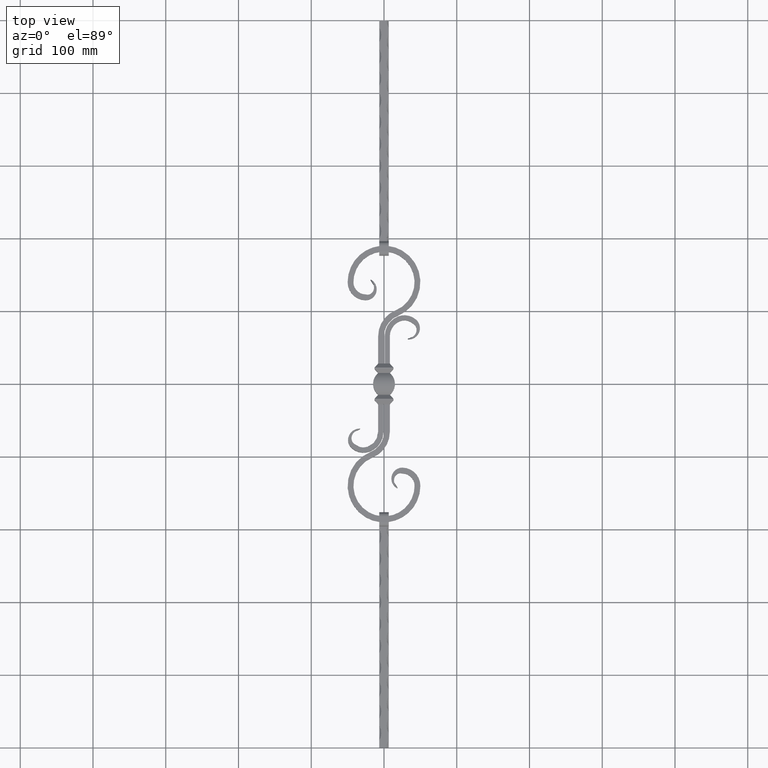
[diagram: clean part render]
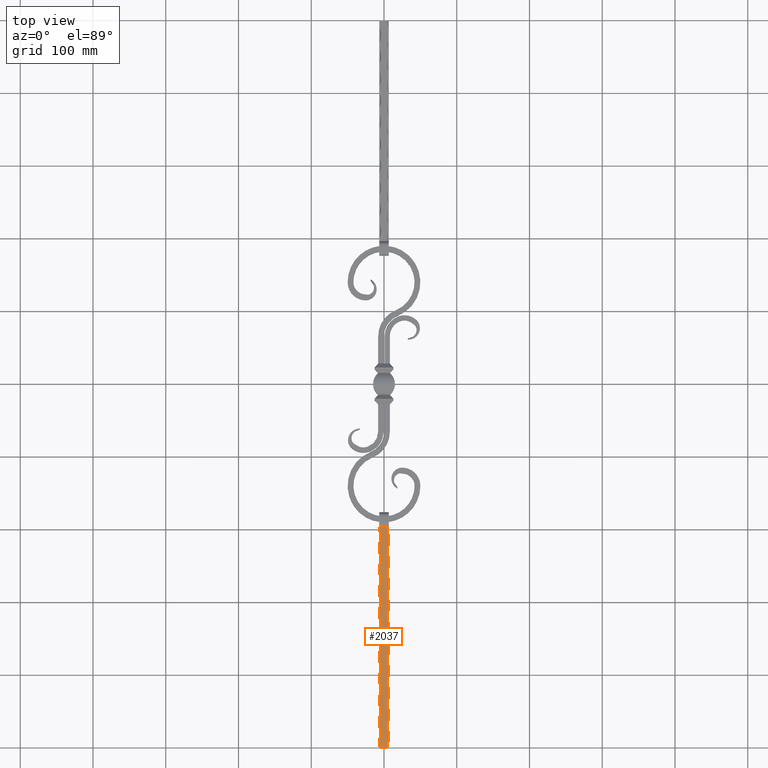
[diagram: same view with one face highlighted and labeled with its STEP entity id]
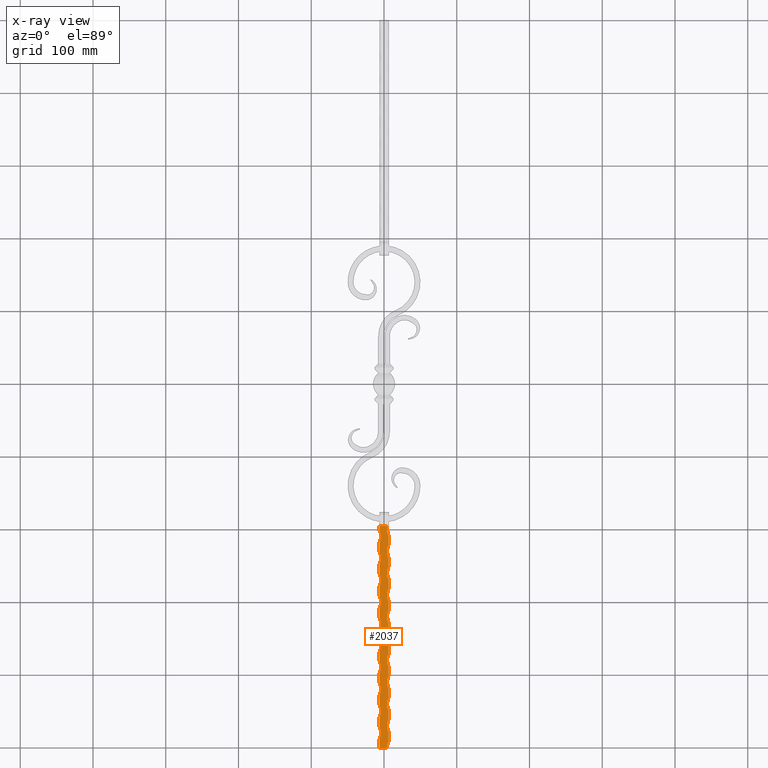
[diagram: x-ray of the same camera — body ghosted, the highlighted face saturated]
A machine part, top view. The second image highlights one B-rep face of the part: STEP entity #2037.
The next image is the same camera in x-ray: the body ghosted, the highlighted face saturated — about 0% of this face is hidden behind the body in this view.
In plain terms, the highlighted planar face has unit normal (-0, 0, -1).
Its self-contained STEP definition (entity closure, byte-faithful):
#44 = CARTESIAN_POINT ( 'NONE',  ( -6.499999999999999112, -380.0000000000000000, 6.500000000000000888 ) ) ;
#49 = VERTEX_POINT ( 'NONE', #18248 ) ;
#67 = LINE ( 'NONE', #6631, #11092 ) ;
#108 = ORIENTED_EDGE ( 'NONE', *, *, #2004, .F. ) ;
#117 = CARTESIAN_POINT ( 'NONE',  ( -6.499999999999999112, -500.0000000000000000, 6.500000000000000888 ) ) ;
#171 = CARTESIAN_POINT ( 'NONE',  ( 6.500000000000000888, -219.9999999999999716, 6.500000000000000888 ) ) ;
#199 = ORIENTED_EDGE ( 'NONE', *, *, #9849, .F. ) ;
#234 = VERTEX_POINT ( 'NONE', #6979 ) ;
#311 = EDGE_CURVE ( 'NONE', #9014, #1163, #14910, .T. ) ;
#418 = ORIENTED_EDGE ( 'NONE', *, *, #11636, .F. ) ;
#466 = CARTESIAN_POINT ( 'NONE',  ( -25.25000000000003553, -390.0000000000000000, 6.500000000000000888 ) ) ;
#713 = CIRCLE ( 'NONE', #12498, 21.25000000000003197 ) ;
#729 = EDGE_CURVE ( 'NONE', #3152, #10022, #17336, .T. ) ;
#760 = DIRECTION ( 'NONE',  ( -0.000000000000000000, -0.000000000000000000, 1.000000000000000000 ) ) ;
#802 = EDGE_CURVE ( 'NONE', #11453, #2189, #16228, .T. ) ;
#821 = DIRECTION ( 'NONE',  ( -0.000000000000000000, -0.000000000000000000, 1.000000000000000000 ) ) ;
#859 = VECTOR ( 'NONE', #11815, 1000.000000000000000 ) ;
#863 = CARTESIAN_POINT ( 'NONE',  ( -6.499999999999999112, -500.0000000000000000, 6.500000000000000888 ) ) ;
#1005 = EDGE_CURVE ( 'NONE', #234, #14254, #11531, .T. ) ;
#1046 = LINE ( 'NONE', #14495, #2365 ) ;
#1069 = AXIS2_PLACEMENT_3D ( 'NONE', #17343, #6003, #11558 ) ;
#1075 = CARTESIAN_POINT ( 'NONE',  ( -25.25000000000003553, -209.9999999999999716, 6.500000000000000888 ) ) ;
#1091 = EDGE_CURVE ( 'NONE', #8432, #17689, #11980, .T. ) ;
#1093 = VERTEX_POINT ( 'NONE', #14836 ) ;
#1106 = CIRCLE ( 'NONE', #8530, 21.25000000000003197 ) ;
#1138 = LINE ( 'NONE', #15824, #4433 ) ;
#1163 = VERTEX_POINT ( 'NONE', #3331 ) ;
#1203 = CIRCLE ( 'NONE', #12056, 21.25000000000003197 ) ;
#1230 = CARTESIAN_POINT ( 'NONE',  ( -6.499999999999999112, -280.0000000000000000, 6.500000000000000888 ) ) ;
#1265 = DIRECTION ( 'NONE',  ( -1.000000000000000000, 0.000000000000000000, 0.000000000000000000 ) ) ;
#1297 = AXIS2_PLACEMENT_3D ( 'NONE', #15415, #5313, #1265 ) ;
#1318 = CARTESIAN_POINT ( 'NONE',  ( 6.500000000000000888, -279.9999999999999432, 6.500000000000000888 ) ) ;
#1435 = CARTESIAN_POINT ( 'NONE',  ( 6.500000000000000888, -339.9999999999999432, 6.500000000000000888 ) ) ;
#1456 = DIRECTION ( 'NONE',  ( -0.000000000000000000, 1.000000000000000000, -0.000000000000000000 ) ) ;
#1717 = CARTESIAN_POINT ( 'NONE',  ( -6.499999999999999112, -500.0000000000000000, 6.500000000000000888 ) ) ;
#1723 = CARTESIAN_POINT ( 'NONE',  ( 25.25000000000002132, -500.0000000000000000, 6.500000000000018652 ) ) ;
#1737 = CARTESIAN_POINT ( 'NONE',  ( 6.500000000000000888, -459.9999999999999432, 6.500000000000000888 ) ) ;
#1794 = CARTESIAN_POINT ( 'NONE',  ( -6.499999999999999112, -459.9999999999999432, 6.500000000000000888 ) ) ;
#1909 = CARTESIAN_POINT ( 'NONE',  ( 25.25000000000002842, -410.0000000000000000, 6.500000000000000888 ) ) ;
#1965 = CARTESIAN_POINT ( 'NONE',  ( 6.500000000000000888, -500.0000000000000000, 6.500000000000000888 ) ) ;
#2004 = EDGE_CURVE ( 'NONE', #1163, #6550, #713, .T. ) ;
#2037 = ADVANCED_FACE ( 'NONE', ( #7765 ), #12389, .F. ) ;
#2052 = EDGE_CURVE ( 'NONE', #234, #10519, #8851, .T. ) ;
#2167 = CARTESIAN_POINT ( 'NONE',  ( -25.25000000000003553, -300.0000000000000000, 6.500000000000000888 ) ) ;
#2189 = VERTEX_POINT ( 'NONE', #1794 ) ;
#2228 = DIRECTION ( 'NONE',  ( -1.000000000000000000, 0.000000000000000000, 0.000000000000000000 ) ) ;
#2237 = ORIENTED_EDGE ( 'NONE', *, *, #2245, .F. ) ;
#2245 = EDGE_CURVE ( 'NONE', #3994, #16350, #11726, .T. ) ;
#2298 = VERTEX_POINT ( 'NONE', #1230 ) ;
#2301 = CARTESIAN_POINT ( 'NONE',  ( -25.25000000000003553, -449.9999999999999432, 6.500000000000000888 ) ) ;
#2335 = CIRCLE ( 'NONE', #10131, 21.25000000000003197 ) ;
#2365 = VECTOR ( 'NONE', #11722, 1000.000000000000000 ) ;
#2454 = EDGE_CURVE ( 'NONE', #11581, #2298, #15756, .T. ) ;
#2463 = CARTESIAN_POINT ( 'NONE',  ( -6.499999999999999112, -500.0000000000000000, 6.500000000000000888 ) ) ;
#2469 = CARTESIAN_POINT ( 'NONE',  ( 6.500000000000000888, -500.0000000000000000, 6.500000000000000888 ) ) ;
#2483 = EDGE_CURVE ( 'NONE', #17567, #14969, #1138, .T. ) ;
#2692 = ORIENTED_EDGE ( 'NONE', *, *, #5502, .T. ) ;
#2814 = DIRECTION ( 'NONE',  ( -0.000000000000000000, -0.000000000000000000, 1.000000000000000000 ) ) ;
#2856 = VERTEX_POINT ( 'NONE', #16791 ) ;
#2883 = CIRCLE ( 'NONE', #12993, 21.25000000000003197 ) ;
#2935 = AXIS2_PLACEMENT_3D ( 'NONE', #11520, #17601, #17478 ) ;
#2981 = EDGE_CURVE ( 'NONE', #10022, #5537, #2883, .T. ) ;
#3027 = DIRECTION ( 'NONE',  ( -0.000000000000000000, -0.000000000000000000, 1.000000000000000000 ) ) ;
#3121 = CARTESIAN_POINT ( 'NONE',  ( 6.500000000000000888, -300.0000000000000000, 6.500000000000000888 ) ) ;
#3152 = VERTEX_POINT ( 'NONE', #4709 ) ;
#3160 = VECTOR ( 'NONE', #5930, 1000.000000000000000 ) ;
#3245 = DIRECTION ( 'NONE',  ( -0.000000000000000000, 1.000000000000000000, -0.000000000000000000 ) ) ;
#3258 = DIRECTION ( 'NONE',  ( -0.000000000000000000, 1.000000000000000000, -0.000000000000000000 ) ) ;
#3278 = LINE ( 'NONE', #15966, #17429 ) ;
#3322 = VECTOR ( 'NONE', #1456, 1000.000000000000000 ) ;
#3331 = CARTESIAN_POINT ( 'NONE',  ( -6.499999999999999112, -250.0000000000000000, 6.500000000000000888 ) ) ;
#3333 = EDGE_CURVE ( 'NONE', #49, #11453, #12131, .T. ) ;
#3448 = EDGE_CURVE ( 'NONE', #16931, #8896, #10805, .T. ) ;
#3452 = VERTEX_POINT ( 'NONE', #7027 ) ;
#3481 = CARTESIAN_POINT ( 'NONE',  ( -6.499999999999999112, -500.0000000000000000, 6.500000000000000888 ) ) ;
#3489 = DIRECTION ( 'NONE',  ( -0.000000000000000000, -0.000000000000000000, 1.000000000000000000 ) ) ;
#3518 = CIRCLE ( 'NONE', #11651, 21.25000000000003197 ) ;
#3608 = CIRCLE ( 'NONE', #4277, 21.25000000000003197 ) ;
#3616 = VECTOR ( 'NONE', #4423, 1000.000000000000000 ) ;
#3697 = DIRECTION ( 'NONE',  ( -0.000000000000000000, -0.000000000000000000, 1.000000000000000000 ) ) ;
#3707 = DIRECTION ( 'NONE',  ( -1.000000000000000000, 0.000000000000000000, 0.000000000000000000 ) ) ;
#3741 = CARTESIAN_POINT ( 'NONE',  ( 6.500000000000000888, -240.0000000000000000, 6.500000000000000888 ) ) ;
#3766 = ORIENTED_EDGE ( 'NONE', *, *, #10804, .F. ) ;
#3840 = DIRECTION ( 'NONE',  ( -1.000000000000000000, 0.000000000000000000, 0.000000000000000000 ) ) ;
#3859 = CARTESIAN_POINT ( 'NONE',  ( -25.25000000000003553, -329.9999999999999432, 6.500000000000000888 ) ) ;
#3876 = DIRECTION ( 'NONE',  ( -0.000000000000000000, -0.000000000000000000, 1.000000000000000000 ) ) ;
#3937 = DIRECTION ( 'NONE',  ( -0.000000000000000000, 0.000000000000000000, -1.000000000000000000 ) ) ;
#3975 = AXIS2_PLACEMENT_3D ( 'NONE', #15091, #3876, #10852 ) ;
#3994 = VERTEX_POINT ( 'NONE', #10263 ) ;
#4027 = EDGE_CURVE ( 'NONE', #4401, #4323, #12575, .T. ) ;
#4111 = ORIENTED_EDGE ( 'NONE', *, *, #16289, .F. ) ;
#4171 = CARTESIAN_POINT ( 'NONE',  ( -6.499999999999999112, -500.0000000000000000, 6.500000000000000888 ) ) ;
#4230 = DIRECTION ( 'NONE',  ( -1.000000000000000000, 0.000000000000000000, 0.000000000000000000 ) ) ;
#4241 = ORIENTED_EDGE ( 'NONE', *, *, #9174, .F. ) ;
#4261 = VECTOR ( 'NONE', #15504, 1000.000000000000000 ) ;
#4277 = AXIS2_PLACEMENT_3D ( 'NONE', #2301, #12154, #3707 ) ;
#4323 = VERTEX_POINT ( 'NONE', #5503 ) ;
#4401 = VERTEX_POINT ( 'NONE', #8272 ) ;
#4411 = DIRECTION ( 'NONE',  ( -0.000000000000000000, 1.000000000000000000, -0.000000000000000000 ) ) ;
#4423 = DIRECTION ( 'NONE',  ( -0.000000000000000000, 1.000000000000000000, -0.000000000000000000 ) ) ;
#4433 = VECTOR ( 'NONE', #3245, 1000.000000000000000 ) ;
#4451 = CARTESIAN_POINT ( 'NONE',  ( -25.25000000000003553, -420.0000000000000000, 6.500000000000000888 ) ) ;
#4493 = VERTEX_POINT ( 'NONE', #17261 ) ;
#4570 = LINE ( 'NONE', #14580, #17647 ) ;
#4639 = AXIS2_PLACEMENT_3D ( 'NONE', #17801, #3489, #17572 ) ;
#4643 = CARTESIAN_POINT ( 'NONE',  ( -6.499999999999999112, -430.0000000000000000, 6.500000000000000888 ) ) ;
#4662 = EDGE_CURVE ( 'NONE', #4493, #13727, #17434, .T. ) ;
#4709 = CARTESIAN_POINT ( 'NONE',  ( -6.499999999999999112, -410.0000000000000000, 6.500000000000000888 ) ) ;
#4768 = DIRECTION ( 'NONE',  ( -0.000000000000000000, -0.000000000000000000, 1.000000000000000000 ) ) ;
#4776 = VERTEX_POINT ( 'NONE', #9727 ) ;
#4839 = AXIS2_PLACEMENT_3D ( 'NONE', #14378, #15621, #10122 ) ;
#4920 = CIRCLE ( 'NONE', #14294, 21.25000000000003197 ) ;
#4987 = ORIENTED_EDGE ( 'NONE', *, *, #11160, .T. ) ;
#5054 = DIRECTION ( 'NONE',  ( 1.000000000000000000, 0.000000000000000000, 0.000000000000000000 ) ) ;
#5058 = DIRECTION ( 'NONE',  ( -0.000000000000000000, 1.000000000000000000, -0.000000000000000000 ) ) ;
#5168 = AXIS2_PLACEMENT_3D ( 'NONE', #2463, #3937, #5227 ) ;
#5227 = DIRECTION ( 'NONE',  ( -1.000000000000000000, -0.000000000000000000, 0.000000000000000000 ) ) ;
#5273 = AXIS2_PLACEMENT_3D ( 'NONE', #8747, #3027, #12909 ) ;
#5313 = DIRECTION ( 'NONE',  ( -0.000000000000000000, -0.000000000000000000, 1.000000000000000000 ) ) ;
#5361 = DIRECTION ( 'NONE',  ( -1.000000000000000000, 0.000000000000000000, 0.000000000000000000 ) ) ;
#5398 = DIRECTION ( 'NONE',  ( -0.000000000000000000, -0.000000000000000000, 1.000000000000000000 ) ) ;
#5502 = EDGE_CURVE ( 'NONE', #5516, #10519, #4570, .T. ) ;
#5503 = CARTESIAN_POINT ( 'NONE',  ( 6.500000000000000888, -420.0000000000000000, 6.500000000000000888 ) ) ;
#5516 = VERTEX_POINT ( 'NONE', #13137 ) ;
#5530 = DIRECTION ( 'NONE',  ( 1.000000000000000000, 0.000000000000000000, 0.000000000000000000 ) ) ;
#5537 = VERTEX_POINT ( 'NONE', #44 ) ;
#5621 = EDGE_CURVE ( 'NONE', #5537, #1093, #12288, .T. ) ;
#5628 = LINE ( 'NONE', #2469, #6058 ) ;
#5685 = LINE ( 'NONE', #15117, #16741 ) ;
#5738 = DIRECTION ( 'NONE',  ( -1.000000000000000000, 0.000000000000000000, 0.000000000000000000 ) ) ;
#5902 = CARTESIAN_POINT ( 'NONE',  ( 6.500000000000000888, -449.9999999999999432, 6.500000000000000888 ) ) ;
#5930 = DIRECTION ( 'NONE',  ( -0.000000000000000000, 1.000000000000000000, -0.000000000000000000 ) ) ;
#5987 = EDGE_CURVE ( 'NONE', #13130, #11223, #10977, .T. ) ;
#6003 = DIRECTION ( 'NONE',  ( -0.000000000000000000, -0.000000000000000000, 1.000000000000000000 ) ) ;
#6023 = ORIENTED_EDGE ( 'NONE', *, *, #2052, .F. ) ;
#6058 = VECTOR ( 'NONE', #10859, 1000.000000000000000 ) ;
#6144 = CIRCLE ( 'NONE', #9402, 21.25000000000003197 ) ;
#6179 = ORIENTED_EDGE ( 'NONE', *, *, #12468, .T. ) ;
#6195 = DIRECTION ( 'NONE',  ( -0.000000000000000000, 1.000000000000000000, -0.000000000000000000 ) ) ;
#6318 = CARTESIAN_POINT ( 'NONE',  ( -6.499999999999999112, -500.0000000000000000, 6.500000000000000888 ) ) ;
#6481 = DIRECTION ( 'NONE',  ( -0.000000000000000000, 1.000000000000000000, -0.000000000000000000 ) ) ;
#6499 = CARTESIAN_POINT ( 'NONE',  ( -6.499999999999999112, -219.9999999999999716, 6.500000000000000888 ) ) ;
#6550 = VERTEX_POINT ( 'NONE', #9619 ) ;
#6579 = VERTEX_POINT ( 'NONE', #1318 ) ;
#6583 = CARTESIAN_POINT ( 'NONE',  ( -6.499999999999999112, -470.0000000000000000, 6.500000000000000888 ) ) ;
#6631 = CARTESIAN_POINT ( 'NONE',  ( -6.499999999999999112, -196.0000000000000000, 6.500000000000000888 ) ) ;
#6633 = VECTOR ( 'NONE', #4411, 1000.000000000000000 ) ;
#6645 = DIRECTION ( 'NONE',  ( -0.000000000000000000, -0.000000000000000000, 1.000000000000000000 ) ) ;
#6663 = ORIENTED_EDGE ( 'NONE', *, *, #14690, .F. ) ;
#6708 = LINE ( 'NONE', #3481, #17578 ) ;
#6750 = VECTOR ( 'NONE', #16132, 1000.000000000000000 ) ;
#6801 = CARTESIAN_POINT ( 'NONE',  ( 25.25000000000002842, -199.9999999999999432, 6.500000000000000888 ) ) ;
#6935 = CIRCLE ( 'NONE', #11848, 21.25000000000003197 ) ;
#6979 = CARTESIAN_POINT ( 'NONE',  ( 6.500000000000000888, -370.0000000000000000, 6.500000000000000888 ) ) ;
#6992 = ORIENTED_EDGE ( 'NONE', *, *, #2981, .F. ) ;
#7027 = CARTESIAN_POINT ( 'NONE',  ( -6.499999999999999112, -310.0000000000000000, 6.500000000000000888 ) ) ;
#7277 = DIRECTION ( 'NONE',  ( -0.000000000000000000, -0.000000000000000000, 1.000000000000000000 ) ) ;
#7359 = VERTEX_POINT ( 'NONE', #9041 ) ;
#7364 = DIRECTION ( 'NONE',  ( -1.000000000000000000, 0.000000000000000000, 0.000000000000000000 ) ) ;
#7371 = CIRCLE ( 'NONE', #14918, 21.25000000000003197 ) ;
#7413 = ORIENTED_EDGE ( 'NONE', *, *, #10278, .T. ) ;
#7495 = DIRECTION ( 'NONE',  ( -0.000000000000000000, 1.000000000000000000, -0.000000000000000000 ) ) ;
#7660 = DIRECTION ( 'NONE',  ( -0.000000000000000000, 1.000000000000000000, -0.000000000000000000 ) ) ;
#7670 = CARTESIAN_POINT ( 'NONE',  ( -6.499999999999999112, -260.0000000000000000, 6.500000000000000888 ) ) ;
#7736 = ORIENTED_EDGE ( 'NONE', *, *, #17703, .F. ) ;
#7763 = EDGE_CURVE ( 'NONE', #13130, #9885, #12835, .T. ) ;
#7765 = FACE_OUTER_BOUND ( 'NONE', #14423, .T. ) ;
#7871 = ORIENTED_EDGE ( 'NONE', *, *, #7763, .T. ) ;
#8096 = DIRECTION ( 'NONE',  ( -0.000000000000000000, 1.000000000000000000, -0.000000000000000000 ) ) ;
#8147 = CARTESIAN_POINT ( 'NONE',  ( -6.499999999999999112, -319.9999999999999432, 6.500000000000000888 ) ) ;
#8159 = ORIENTED_EDGE ( 'NONE', *, *, #9607, .F. ) ;
#8170 = ORIENTED_EDGE ( 'NONE', *, *, #17301, .F. ) ;
#8267 = VECTOR ( 'NONE', #5058, 1000.000000000000000 ) ;
#8272 = CARTESIAN_POINT ( 'NONE',  ( 6.500000000000000888, -429.9999999999999432, 6.500000000000000888 ) ) ;
#8396 = ORIENTED_EDGE ( 'NONE', *, *, #13444, .F. ) ;
#8432 = VERTEX_POINT ( 'NONE', #1435 ) ;
#8486 = AXIS2_PLACEMENT_3D ( 'NONE', #16756, #6645, #5361 ) ;
#8530 = AXIS2_PLACEMENT_3D ( 'NONE', #9197, #760, #14926 ) ;
#8747 = CARTESIAN_POINT ( 'NONE',  ( -25.25000000000003553, -270.0000000000000000, 6.500000000000000888 ) ) ;
#8851 = CIRCLE ( 'NONE', #3975, 21.25000000000003197 ) ;
#8857 = ORIENTED_EDGE ( 'NONE', *, *, #311, .F. ) ;
#8886 = ORIENTED_EDGE ( 'NONE', *, *, #5621, .F. ) ;
#8896 = VERTEX_POINT ( 'NONE', #15433 ) ;
#8898 = DIRECTION ( 'NONE',  ( -1.000000000000000000, 0.000000000000000000, 0.000000000000000000 ) ) ;
#8925 = CIRCLE ( 'NONE', #8486, 21.25000000000003197 ) ;
#9014 = VERTEX_POINT ( 'NONE', #7670 ) ;
#9041 = CARTESIAN_POINT ( 'NONE',  ( 6.500000000000000888, -209.9999999999999716, 6.500000000000000888 ) ) ;
#9071 = EDGE_CURVE ( 'NONE', #6579, #14969, #15047, .T. ) ;
#9134 = ORIENTED_EDGE ( 'NONE', *, *, #10348, .F. ) ;
#9174 = EDGE_CURVE ( 'NONE', #17567, #17689, #1106, .T. ) ;
#9176 = DIRECTION ( 'NONE',  ( -1.000000000000000000, 0.000000000000000000, 0.000000000000000000 ) ) ;
#9197 = CARTESIAN_POINT ( 'NONE',  ( 25.25000000000002842, -319.9999999999999432, 6.500000000000000888 ) ) ;
#9402 = AXIS2_PLACEMENT_3D ( 'NONE', #2167, #12256, #9176 ) ;
#9440 = VERTEX_POINT ( 'NONE', #10168 ) ;
#9607 = EDGE_CURVE ( 'NONE', #3452, #11581, #6144, .T. ) ;
#9619 = CARTESIAN_POINT ( 'NONE',  ( -6.499999999999999112, -229.9999999999999716, 6.500000000000000888 ) ) ;
#9727 = CARTESIAN_POINT ( 'NONE',  ( 6.500000000000000888, -249.9999999999999716, 6.500000000000000888 ) ) ;
#9774 = VERTEX_POINT ( 'NONE', #171 ) ;
#9832 = ORIENTED_EDGE ( 'NONE', *, *, #9071, .F. ) ;
#9846 = DIRECTION ( 'NONE',  ( -0.000000000000000000, 1.000000000000000000, -0.000000000000000000 ) ) ;
#9849 = EDGE_CURVE ( 'NONE', #5516, #4323, #3518, .T. ) ;
#9885 = VERTEX_POINT ( 'NONE', #5902 ) ;
#10022 = VERTEX_POINT ( 'NONE', #16188 ) ;
#10122 = DIRECTION ( 'NONE',  ( -1.000000000000000000, 0.000000000000000000, 0.000000000000000000 ) ) ;
#10131 = AXIS2_PLACEMENT_3D ( 'NONE', #3859, #5398, #16727 ) ;
#10168 = CARTESIAN_POINT ( 'NONE',  ( -6.499999999999999112, -350.0000000000000000, 6.500000000000000888 ) ) ;
#10195 = DIRECTION ( 'NONE',  ( -0.000000000000000000, -0.000000000000000000, 1.000000000000000000 ) ) ;
#10263 = CARTESIAN_POINT ( 'NONE',  ( -6.499999999999999112, -439.9999999999999432, 6.500000000000000888 ) ) ;
#10278 = EDGE_CURVE ( 'NONE', #18182, #11223, #3278, .T. ) ;
#10348 = EDGE_CURVE ( 'NONE', #2298, #9014, #13882, .T. ) ;
#10487 = VERTEX_POINT ( 'NONE', #12874 ) ;
#10519 = VERTEX_POINT ( 'NONE', #11446 ) ;
#10719 = EDGE_CURVE ( 'NONE', #17033, #16931, #14788, .T. ) ;
#10740 = VERTEX_POINT ( 'NONE', #8147 ) ;
#10744 = ORIENTED_EDGE ( 'NONE', *, *, #12340, .F. ) ;
#10804 = EDGE_CURVE ( 'NONE', #10740, #3452, #5685, .T. ) ;
#10805 = LINE ( 'NONE', #11417, #3322 ) ;
#10816 = ORIENTED_EDGE ( 'NONE', *, *, #4027, .T. ) ;
#10852 = DIRECTION ( 'NONE',  ( -1.000000000000000000, 0.000000000000000000, 0.000000000000000000 ) ) ;
#10859 = DIRECTION ( 'NONE',  ( -0.000000000000000000, 1.000000000000000000, -0.000000000000000000 ) ) ;
#10877 = LINE ( 'NONE', #17584, #15324 ) ;
#10883 = CARTESIAN_POINT ( 'NONE',  ( 6.499999999999992895, -490.0000000000000000, 6.500000000000018652 ) ) ;
#10977 = CIRCLE ( 'NONE', #4839, 21.25000000000003197 ) ;
#11092 = VECTOR ( 'NONE', #5530, 1000.000000000000000 ) ;
#11132 = ORIENTED_EDGE ( 'NONE', *, *, #10719, .F. ) ;
#11160 = EDGE_CURVE ( 'NONE', #9774, #7359, #1046, .T. ) ;
#11223 = VERTEX_POINT ( 'NONE', #14736 ) ;
#11404 = CARTESIAN_POINT ( 'NONE',  ( -6.499999999999999112, -290.0000000000000000, 6.500000000000000888 ) ) ;
#11417 = CARTESIAN_POINT ( 'NONE',  ( -6.499999999999999112, -500.0000000000000000, 6.500000000000000888 ) ) ;
#11443 = ORIENTED_EDGE ( 'NONE', *, *, #802, .F. ) ;
#11446 = CARTESIAN_POINT ( 'NONE',  ( 6.500000000000000888, -390.0000000000000000, 6.500000000000000888 ) ) ;
#11453 = VERTEX_POINT ( 'NONE', #6583 ) ;
#11455 = ORIENTED_EDGE ( 'NONE', *, *, #729, .F. ) ;
#11520 = CARTESIAN_POINT ( 'NONE',  ( 25.25000000000002842, -350.0000000000000000, 6.500000000000000888 ) ) ;
#11531 = LINE ( 'NONE', #17137, #3160 ) ;
#11558 = DIRECTION ( 'NONE',  ( -1.000000000000000000, 0.000000000000000000, 0.000000000000000000 ) ) ;
#11566 = CIRCLE ( 'NONE', #17639, 21.25000000000003197 ) ;
#11581 = VERTEX_POINT ( 'NONE', #11404 ) ;
#11636 = EDGE_CURVE ( 'NONE', #8432, #14254, #15418, .T. ) ;
#11651 = AXIS2_PLACEMENT_3D ( 'NONE', #1909, #15831, #7364 ) ;
#11722 = DIRECTION ( 'NONE',  ( -0.000000000000000000, 1.000000000000000000, -0.000000000000000000 ) ) ;
#11726 = LINE ( 'NONE', #14713, #16193 ) ;
#11815 = DIRECTION ( 'NONE',  ( -0.000000000000000000, 1.000000000000000000, -0.000000000000000000 ) ) ;
#11845 = VERTEX_POINT ( 'NONE', #3741 ) ;
#11848 = AXIS2_PLACEMENT_3D ( 'NONE', #15936, #10195, #8898 ) ;
#11908 = EDGE_CURVE ( 'NONE', #10487, #10740, #2335, .T. ) ;
#11948 = CARTESIAN_POINT ( 'NONE',  ( 6.500000000000000888, -500.0000000000000000, 6.500000000000000888 ) ) ;
#11957 = CARTESIAN_POINT ( 'NONE',  ( 6.500000000000000888, -309.9999999999999432, 6.500000000000000888 ) ) ;
#11980 = LINE ( 'NONE', #11948, #14892 ) ;
#12005 = ORIENTED_EDGE ( 'NONE', *, *, #11908, .F. ) ;
#12015 = ORIENTED_EDGE ( 'NONE', *, *, #1091, .T. ) ;
#12016 = CARTESIAN_POINT ( 'NONE',  ( 4.379865836559640790, -196.0000000000000000, 6.500000000000000888 ) ) ;
#12056 = AXIS2_PLACEMENT_3D ( 'NONE', #6801, #15144, #13827 ) ;
#12069 = ORIENTED_EDGE ( 'NONE', *, *, #5987, .F. ) ;
#12131 = CIRCLE ( 'NONE', #1297, 21.25000000000003197 ) ;
#12154 = DIRECTION ( 'NONE',  ( -0.000000000000000000, -0.000000000000000000, 1.000000000000000000 ) ) ;
#12227 = EDGE_CURVE ( 'NONE', #6550, #17033, #16723, .T. ) ;
#12256 = DIRECTION ( 'NONE',  ( -0.000000000000000000, -0.000000000000000000, 1.000000000000000000 ) ) ;
#12288 = LINE ( 'NONE', #6318, #6750 ) ;
#12340 = EDGE_CURVE ( 'NONE', #16350, #3152, #7371, .T. ) ;
#12376 = VECTOR ( 'NONE', #13302, 1000.000000000000000 ) ;
#12389 = PLANE ( 'NONE',  #5168 ) ;
#12468 = EDGE_CURVE ( 'NONE', #4776, #11845, #14504, .T. ) ;
#12498 = AXIS2_PLACEMENT_3D ( 'NONE', #15029, #3697, #2228 ) ;
#12575 = LINE ( 'NONE', #1965, #859 ) ;
#12659 = CARTESIAN_POINT ( 'NONE',  ( 6.500000000000000888, -360.0000000000000000, 6.500000000000000888 ) ) ;
#12662 = DIRECTION ( 'NONE',  ( -0.000000000000000000, -0.000000000000000000, 1.000000000000000000 ) ) ;
#12835 = LINE ( 'NONE', #17748, #12376 ) ;
#12842 = EDGE_CURVE ( 'NONE', #6579, #2856, #5628, .T. ) ;
#12869 = EDGE_CURVE ( 'NONE', #1093, #9440, #8925, .T. ) ;
#12874 = CARTESIAN_POINT ( 'NONE',  ( -6.499999999999999112, -339.9999999999999432, 6.500000000000000888 ) ) ;
#12909 = DIRECTION ( 'NONE',  ( -1.000000000000000000, 0.000000000000000000, 0.000000000000000000 ) ) ;
#12984 = DIRECTION ( 'NONE',  ( -1.000000000000000000, 0.000000000000000000, 0.000000000000000000 ) ) ;
#12993 = AXIS2_PLACEMENT_3D ( 'NONE', #466, #4768, #15990 ) ;
#13110 = AXIS2_PLACEMENT_3D ( 'NONE', #1075, #821, #3840 ) ;
#13115 = VECTOR ( 'NONE', #9846, 1000.000000000000000 ) ;
#13130 = VERTEX_POINT ( 'NONE', #1737 ) ;
#13137 = CARTESIAN_POINT ( 'NONE',  ( 6.500000000000000888, -399.9999999999999432, 6.500000000000000888 ) ) ;
#13302 = DIRECTION ( 'NONE',  ( -0.000000000000000000, 1.000000000000000000, -0.000000000000000000 ) ) ;
#13444 = EDGE_CURVE ( 'NONE', #18182, #13727, #11566, .T. ) ;
#13493 = ORIENTED_EDGE ( 'NONE', *, *, #3333, .F. ) ;
#13546 = CARTESIAN_POINT ( 'NONE',  ( -6.499999999999999112, -500.0000000000000000, 6.500000000000000888 ) ) ;
#13705 = CARTESIAN_POINT ( 'NONE',  ( 6.500000000000000888, -329.9999999999999432, 6.500000000000000888 ) ) ;
#13727 = VERTEX_POINT ( 'NONE', #13867 ) ;
#13827 = DIRECTION ( 'NONE',  ( -1.000000000000000000, 0.000000000000000000, 0.000000000000000000 ) ) ;
#13867 = CARTESIAN_POINT ( 'NONE',  ( 3.999999999999991562, -500.0000000000000000, 6.500000000000000888 ) ) ;
#13882 = CIRCLE ( 'NONE', #5273, 21.25000000000003197 ) ;
#14023 = EDGE_CURVE ( 'NONE', #9440, #10487, #6708, .T. ) ;
#14254 = VERTEX_POINT ( 'NONE', #12659 ) ;
#14294 = AXIS2_PLACEMENT_3D ( 'NONE', #15531, #12662, #5738 ) ;
#14378 = CARTESIAN_POINT ( 'NONE',  ( 25.25000000000002842, -470.0000000000000000, 6.500000000000000888 ) ) ;
#14423 = EDGE_LOOP ( 'NONE', ( #7736, #17125, #11132, #16677, #108, #8857, #9134, #16819, #8159, #3766, #12005, #14642, #16804, #8886, #6992, #11455, #10744, #2237, #8170, #11443, #13493, #16769, #15702, #8396, #7413, #12069, #7871, #16179, #10816, #199, #2692, #6023, #16263, #418, #12015, #4241, #15829, #9832, #15721, #4111, #6179, #16695, #4987, #6663 ) ) ;
#14495 = CARTESIAN_POINT ( 'NONE',  ( 6.500000000000000888, -500.0000000000000000, 6.500000000000000888 ) ) ;
#14504 = LINE ( 'NONE', #17795, #8267 ) ;
#14537 = DIRECTION ( 'NONE',  ( -0.000000000000000000, 1.000000000000000000, -0.000000000000000000 ) ) ;
#14559 = VERTEX_POINT ( 'NONE', #12016 ) ;
#14580 = CARTESIAN_POINT ( 'NONE',  ( 6.500000000000000888, -500.0000000000000000, 6.500000000000000888 ) ) ;
#14642 = ORIENTED_EDGE ( 'NONE', *, *, #14023, .F. ) ;
#14690 = EDGE_CURVE ( 'NONE', #14559, #7359, #1203, .T. ) ;
#14713 = CARTESIAN_POINT ( 'NONE',  ( -6.499999999999999112, -500.0000000000000000, 6.500000000000000888 ) ) ;
#14736 = CARTESIAN_POINT ( 'NONE',  ( 6.500000000000000888, -480.0000000000000000, 6.500000000000000888 ) ) ;
#14788 = CIRCLE ( 'NONE', #13110, 21.25000000000003197 ) ;
#14836 = CARTESIAN_POINT ( 'NONE',  ( -6.499999999999999112, -370.0000000000000000, 6.500000000000000888 ) ) ;
#14892 = VECTOR ( 'NONE', #8096, 1000.000000000000000 ) ;
#14910 = LINE ( 'NONE', #17110, #3616 ) ;
#14918 = AXIS2_PLACEMENT_3D ( 'NONE', #4451, #7277, #12984 ) ;
#14926 = DIRECTION ( 'NONE',  ( -1.000000000000000000, 0.000000000000000000, 0.000000000000000000 ) ) ;
#14951 = EDGE_CURVE ( 'NONE', #4401, #9885, #15353, .T. ) ;
#14962 = VECTOR ( 'NONE', #6481, 1000.000000000000000 ) ;
#14969 = VERTEX_POINT ( 'NONE', #3121 ) ;
#15029 = CARTESIAN_POINT ( 'NONE',  ( -25.25000000000003553, -240.0000000000000000, 6.500000000000000888 ) ) ;
#15047 = CIRCLE ( 'NONE', #4639, 21.25000000000003197 ) ;
#15091 = CARTESIAN_POINT ( 'NONE',  ( 25.25000000000002842, -380.0000000000000000, 6.500000000000000888 ) ) ;
#15117 = CARTESIAN_POINT ( 'NONE',  ( -6.499999999999999112, -500.0000000000000000, 6.500000000000000888 ) ) ;
#15144 = DIRECTION ( 'NONE',  ( -0.000000000000000000, -0.000000000000000000, 1.000000000000000000 ) ) ;
#15180 = DIRECTION ( 'NONE',  ( -0.000000000000000000, 1.000000000000000000, -0.000000000000000000 ) ) ;
#15324 = VECTOR ( 'NONE', #6195, 1000.000000000000000 ) ;
#15353 = CIRCLE ( 'NONE', #1069, 21.25000000000003197 ) ;
#15415 = CARTESIAN_POINT ( 'NONE',  ( -25.25000000000003553, -480.0000000000000000, 6.500000000000000888 ) ) ;
#15418 = CIRCLE ( 'NONE', #2935, 21.25000000000003197 ) ;
#15433 = CARTESIAN_POINT ( 'NONE',  ( -6.500000000000000000, -196.0000000000000000, 6.500000000000000888 ) ) ;
#15456 = VECTOR ( 'NONE', #5054, 1000.000000000000000 ) ;
#15504 = DIRECTION ( 'NONE',  ( -0.000000000000000000, 1.000000000000000000, -0.000000000000000000 ) ) ;
#15531 = CARTESIAN_POINT ( 'NONE',  ( 25.25000000000002842, -229.9999999999999716, 6.500000000000000888 ) ) ;
#15621 = DIRECTION ( 'NONE',  ( -0.000000000000000000, -0.000000000000000000, 1.000000000000000000 ) ) ;
#15702 = ORIENTED_EDGE ( 'NONE', *, *, #4662, .T. ) ;
#15721 = ORIENTED_EDGE ( 'NONE', *, *, #12842, .T. ) ;
#15756 = LINE ( 'NONE', #1717, #6633 ) ;
#15824 = CARTESIAN_POINT ( 'NONE',  ( 6.500000000000000888, -500.0000000000000000, 6.500000000000000888 ) ) ;
#15829 = ORIENTED_EDGE ( 'NONE', *, *, #2483, .T. ) ;
#15831 = DIRECTION ( 'NONE',  ( -0.000000000000000000, -0.000000000000000000, 1.000000000000000000 ) ) ;
#15936 = CARTESIAN_POINT ( 'NONE',  ( 25.25000000000002842, -260.0000000000000000, 6.500000000000000888 ) ) ;
#15966 = CARTESIAN_POINT ( 'NONE',  ( 6.500000000000000888, -500.0000000000000000, 6.500000000000000888 ) ) ;
#15990 = DIRECTION ( 'NONE',  ( -1.000000000000000000, 0.000000000000000000, 0.000000000000000000 ) ) ;
#16132 = DIRECTION ( 'NONE',  ( -0.000000000000000000, 1.000000000000000000, -0.000000000000000000 ) ) ;
#16179 = ORIENTED_EDGE ( 'NONE', *, *, #14951, .F. ) ;
#16188 = CARTESIAN_POINT ( 'NONE',  ( -6.499999999999999112, -400.0000000000000000, 6.500000000000000888 ) ) ;
#16193 = VECTOR ( 'NONE', #7495, 1000.000000000000000 ) ;
#16228 = LINE ( 'NONE', #4171, #4261 ) ;
#16263 = ORIENTED_EDGE ( 'NONE', *, *, #1005, .T. ) ;
#16289 = EDGE_CURVE ( 'NONE', #4776, #2856, #6935, .T. ) ;
#16350 = VERTEX_POINT ( 'NONE', #4643 ) ;
#16677 = ORIENTED_EDGE ( 'NONE', *, *, #12227, .F. ) ;
#16695 = ORIENTED_EDGE ( 'NONE', *, *, #17460, .F. ) ;
#16723 = LINE ( 'NONE', #13546, #14962 ) ;
#16727 = DIRECTION ( 'NONE',  ( -1.000000000000000000, 0.000000000000000000, 0.000000000000000000 ) ) ;
#16741 = VECTOR ( 'NONE', #15180, 1000.000000000000000 ) ;
#16756 = CARTESIAN_POINT ( 'NONE',  ( -25.25000000000003553, -360.0000000000000000, 6.500000000000000888 ) ) ;
#16769 = ORIENTED_EDGE ( 'NONE', *, *, #17991, .F. ) ;
#16791 = CARTESIAN_POINT ( 'NONE',  ( 6.500000000000000888, -270.0000000000000000, 6.500000000000000888 ) ) ;
#16804 = ORIENTED_EDGE ( 'NONE', *, *, #12869, .F. ) ;
#16819 = ORIENTED_EDGE ( 'NONE', *, *, #2454, .F. ) ;
#16931 = VERTEX_POINT ( 'NONE', #17495 ) ;
#17033 = VERTEX_POINT ( 'NONE', #6499 ) ;
#17110 = CARTESIAN_POINT ( 'NONE',  ( -6.499999999999999112, -500.0000000000000000, 6.500000000000000888 ) ) ;
#17125 = ORIENTED_EDGE ( 'NONE', *, *, #3448, .F. ) ;
#17137 = CARTESIAN_POINT ( 'NONE',  ( 6.500000000000000888, -500.0000000000000000, 6.500000000000000888 ) ) ;
#17261 = CARTESIAN_POINT ( 'NONE',  ( -6.499999999999999112, -500.0000000000000000, 6.500000000000000888 ) ) ;
#17301 = EDGE_CURVE ( 'NONE', #2189, #3994, #3608, .T. ) ;
#17336 = LINE ( 'NONE', #117, #13115 ) ;
#17343 = CARTESIAN_POINT ( 'NONE',  ( 25.25000000000002842, -439.9999999999999432, 6.500000000000000888 ) ) ;
#17429 = VECTOR ( 'NONE', #14537, 1000.000000000000000 ) ;
#17434 = LINE ( 'NONE', #863, #15456 ) ;
#17460 = EDGE_CURVE ( 'NONE', #9774, #11845, #4920, .T. ) ;
#17478 = DIRECTION ( 'NONE',  ( -1.000000000000000000, 0.000000000000000000, 0.000000000000000000 ) ) ;
#17495 = CARTESIAN_POINT ( 'NONE',  ( -6.499999999999999112, -199.9999999999999432, 6.500000000000000888 ) ) ;
#17567 = VERTEX_POINT ( 'NONE', #11957 ) ;
#17572 = DIRECTION ( 'NONE',  ( -1.000000000000000000, 0.000000000000000000, 0.000000000000000000 ) ) ;
#17578 = VECTOR ( 'NONE', #7660, 1000.000000000000000 ) ;
#17584 = CARTESIAN_POINT ( 'NONE',  ( -6.499999999999999112, -500.0000000000000000, 6.500000000000000888 ) ) ;
#17601 = DIRECTION ( 'NONE',  ( -0.000000000000000000, -0.000000000000000000, 1.000000000000000000 ) ) ;
#17639 = AXIS2_PLACEMENT_3D ( 'NONE', #1723, #2814, #4230 ) ;
#17647 = VECTOR ( 'NONE', #3258, 1000.000000000000000 ) ;
#17689 = VERTEX_POINT ( 'NONE', #13705 ) ;
#17703 = EDGE_CURVE ( 'NONE', #8896, #14559, #67, .T. ) ;
#17748 = CARTESIAN_POINT ( 'NONE',  ( 6.500000000000000888, -500.0000000000000000, 6.500000000000000888 ) ) ;
#17795 = CARTESIAN_POINT ( 'NONE',  ( 6.500000000000000888, -500.0000000000000000, 6.500000000000000888 ) ) ;
#17801 = CARTESIAN_POINT ( 'NONE',  ( 25.25000000000002842, -290.0000000000000000, 6.500000000000000888 ) ) ;
#17991 = EDGE_CURVE ( 'NONE', #4493, #49, #10877, .T. ) ;
#18182 = VERTEX_POINT ( 'NONE', #10883 ) ;
#18248 = CARTESIAN_POINT ( 'NONE',  ( -6.499999999999999112, -490.0000000000000000, 6.500000000000000888 ) ) ;